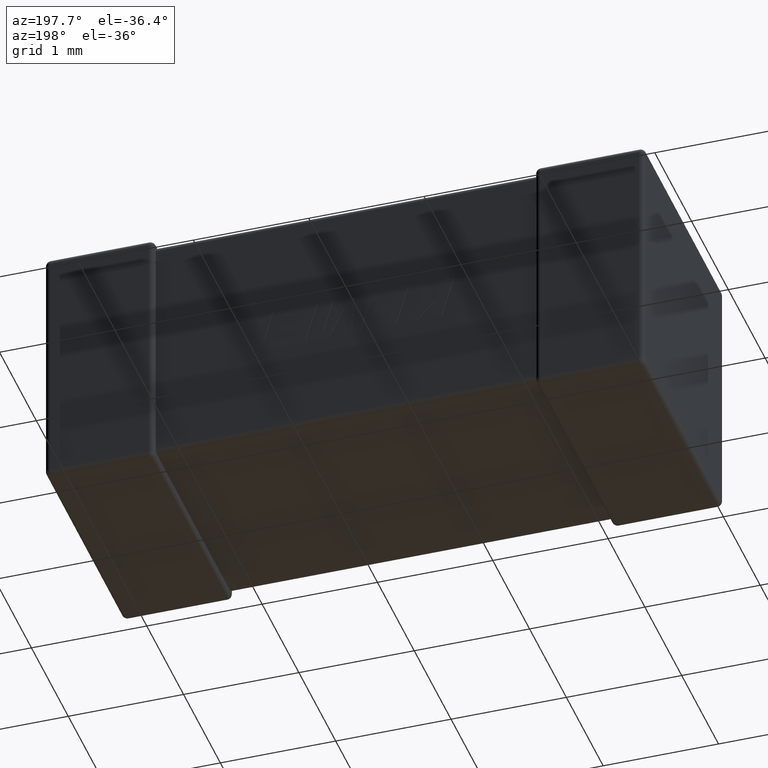
[diagram: clean part render]
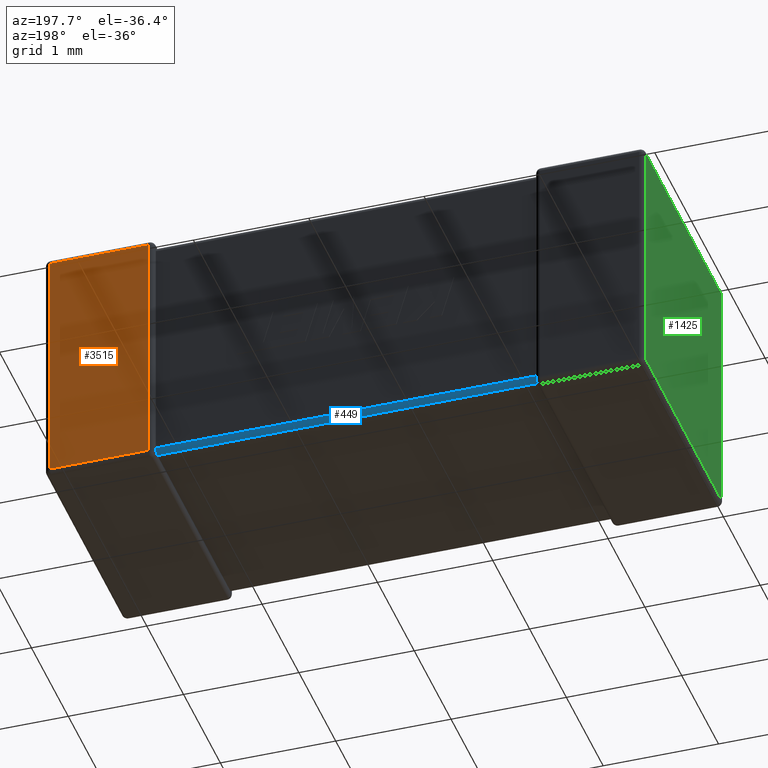
[diagram: same view with three faces highlighted in distinct colors, each labeled with its STEP entity id]
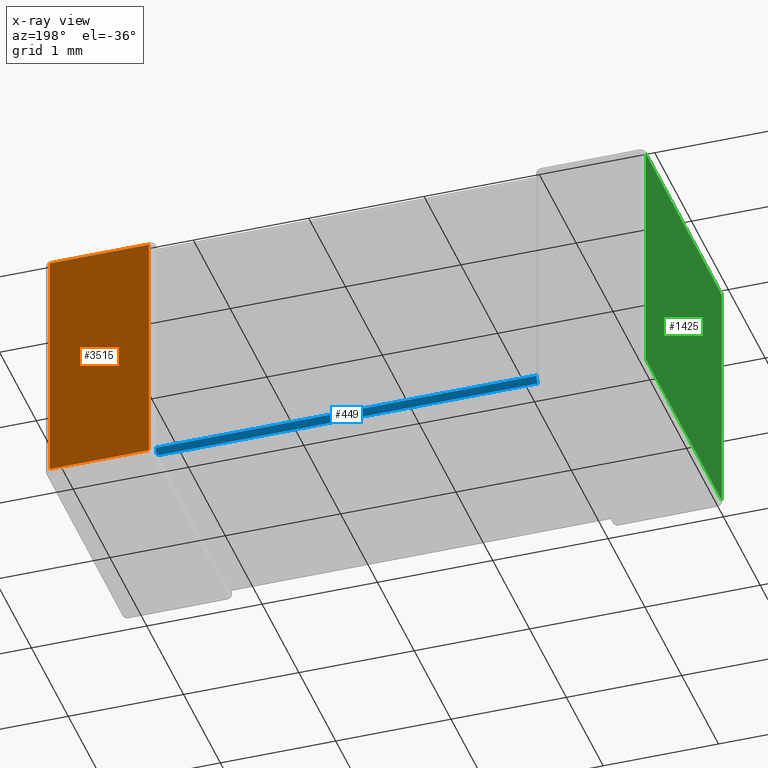
[diagram: x-ray of the same camera — body ghosted, the three highlighted faces saturated]
A machine part, auxiliary view with three faces highlighted in distinct colors.
The next image is the same camera in x-ray (body ghosted, the three faces saturated) — at least one of them is partly hidden behind the body in this view.
Their STEP definitions:

[orange] entity #3515 — the highlighted planar face has unit normal (0, -1, 0).
#100 = VECTOR ( 'NONE', #2564, 1000.000000000000000 ) ;
#117 = ORIENTED_EDGE ( 'NONE', *, *, #4669, .T. ) ;
#129 = LINE ( 'NONE', #1514, #2076 ) ;
#134 = VERTEX_POINT ( 'NONE', #1298 ) ;
#205 = CARTESIAN_POINT ( 'NONE',  ( 5.200000000000000200, 2.149999999999999900, 0.0000000000000000000 ) ) ;
#526 = FACE_OUTER_BOUND ( 'NONE', #4614, .T. ) ;
#687 = CARTESIAN_POINT ( 'NONE',  ( 5.200000000000000200, 2.149999999999999900, -2.154240000000000200 ) ) ;
#763 = VERTEX_POINT ( 'NONE', #1890 ) ;
#1122 = CARTESIAN_POINT ( 'NONE',  ( 5.154239999999999700, 2.149999999999999900, -0.04576000000000000200 ) ) ;
#1262 = AXIS2_PLACEMENT_3D ( 'NONE', #205, #1958, #1977 ) ;
#1298 = CARTESIAN_POINT ( 'NONE',  ( 4.295759999999999600, 2.149999999999999900, -2.154240000000000200 ) ) ;
#1361 = VECTOR ( 'NONE', #3210, 1000.000000000000000 ) ;
#1362 = ORIENTED_EDGE ( 'NONE', *, *, #3627, .T. ) ;
#1483 = ORIENTED_EDGE ( 'NONE', *, *, #2254, .T. ) ;
#1514 = CARTESIAN_POINT ( 'NONE',  ( 4.295759999999999600, 2.149999999999999900, 0.0000000000000000000 ) ) ;
#1536 = LINE ( 'NONE', #4603, #1361 ) ;
#1555 = EDGE_CURVE ( 'NONE', #1922, #763, #4226, .T. ) ;
#1862 = DIRECTION ( 'NONE',  ( -0.0000000000000000000, 0.0000000000000000000, 1.000000000000000000 ) ) ;
#1866 = VERTEX_POINT ( 'NONE', #3213 ) ;
#1890 = CARTESIAN_POINT ( 'NONE',  ( 5.154239999999999700, 2.149999999999999900, -2.154240000000000200 ) ) ;
#1922 = VERTEX_POINT ( 'NONE', #1122 ) ;
#1958 = DIRECTION ( 'NONE',  ( 0.0000000000000000000, -1.000000000000000000, 0.0000000000000000000 ) ) ;
#1977 = DIRECTION ( 'NONE',  ( 0.0000000000000000000, -0.0000000000000000000, -1.000000000000000000 ) ) ;
#1986 = LINE ( 'NONE', #687, #100 ) ;
#2076 = VECTOR ( 'NONE', #1862, 1000.000000000000000 ) ;
#2202 = DIRECTION ( 'NONE',  ( -0.0000000000000000000, -0.0000000000000000000, -1.000000000000000000 ) ) ;
#2254 = EDGE_CURVE ( 'NONE', #763, #134, #1986, .T. ) ;
#2332 = PLANE ( 'NONE',  #1262 ) ;
#2564 = DIRECTION ( 'NONE',  ( -1.000000000000000000, 0.0000000000000000000, 0.0000000000000000000 ) ) ;
#2916 = CARTESIAN_POINT ( 'NONE',  ( 5.154239999999999700, 2.149999999999999900, 0.0000000000000000000 ) ) ;
#3210 = DIRECTION ( 'NONE',  ( 1.000000000000000000, -0.0000000000000000000, -0.0000000000000000000 ) ) ;
#3213 = CARTESIAN_POINT ( 'NONE',  ( 4.295759999999999600, 2.149999999999999900, -0.04576000000000000200 ) ) ;
#3405 = ORIENTED_EDGE ( 'NONE', *, *, #1555, .T. ) ;
#3515 = ADVANCED_FACE ( 'NONE', ( #526 ), #2332, .F. ) ;
#3627 = EDGE_CURVE ( 'NONE', #134, #1866, #129, .T. ) ;
#4120 = VECTOR ( 'NONE', #2202, 1000.000000000000000 ) ;
#4226 = LINE ( 'NONE', #2916, #4120 ) ;
#4603 = CARTESIAN_POINT ( 'NONE',  ( 5.200000000000000200, 2.149999999999999900, -0.04576000000000000200 ) ) ;
#4614 = EDGE_LOOP ( 'NONE', ( #117, #3405, #1483, #1362 ) ) ;
#4669 = EDGE_CURVE ( 'NONE', #1866, #1922, #1536, .T. ) ;

[blue] entity #449 — the highlighted cylindrical surface (edge-blend (fillet) strip) has radius 0.0458 mm, axis along (1, 0, 0).
#96 = CARTESIAN_POINT ( 'NONE',  ( 4.249999999999999100, 2.058479999999999400, -2.154240000000000200 ) ) ;
#178 = CARTESIAN_POINT ( 'NONE',  ( 0.9498373466147110900, 2.100039106626058000, -2.128294917049787100 ) ) ;
#258 = CARTESIAN_POINT ( 'NONE',  ( 4.249998868445320700, 2.104051922929197600, -2.113263305316638100 ) ) ;
#343 = CARTESIAN_POINT ( 'NONE',  ( 0.9499965636499262400, 2.065622045644347300, -2.153679212205679100 ) ) ;
#420 = CARTESIAN_POINT ( 'NONE',  ( 0.9499999999999995100, 2.058479999999999400, -2.108479999999999700 ) ) ;
#436 = CARTESIAN_POINT ( 'NONE',  ( 4.250384154442141200, 2.082883648150979400, -2.147515733511034400 ) ) ;
#443 = DIRECTION ( 'NONE',  ( 0.0000000000000000000, 0.0000000000000000000, -1.000000000000000000 ) ) ;
#449 = ADVANCED_FACE ( 'NONE', ( #2972 ), #4311, .T. ) ;
#452 = VERTEX_POINT ( 'NONE', #1857 ) ;
#472 = CARTESIAN_POINT ( 'NONE',  ( 0.9496158455578572700, 2.097515733511033700, -2.132883648150979600 ) ) ;
#492 = CARTESIAN_POINT ( 'NONE',  ( 0.9499999999999995100, 2.058479999999999400, -2.154240000000000200 ) ) ;
#568 = CARTESIAN_POINT ( 'NONE',  ( 4.250012588762500000, 2.102932436070394500, -2.120348099591588700 ) ) ;
#658 = CARTESIAN_POINT ( 'NONE',  ( 0.9494871695675238800, 2.083542699005999800, -2.147065384896639900 ) ) ;
#799 = ORIENTED_EDGE ( 'NONE', *, *, #1741, .F. ) ;
#813 = CARTESIAN_POINT ( 'NONE',  ( 4.251623174319922400, 2.089584874375030900, -2.142089538239374300 ) ) ;
#844 = CARTESIAN_POINT ( 'NONE',  ( 4.249999999999999100, 2.058479999999999400, -2.154240000000000200 ) ) ;
#847 = B_SPLINE_CURVE_WITH_KNOTS ( 'NONE', 3,
 ( #941, #2323, #4434, #2964, #178, #472, #2229, #2991, #3061, #2588 ),
 .UNSPECIFIED., .F., .F.,
 ( 4, 3, 3, 4 ),
 ( 0.0000000000000000000, 1.522804917170491500E-005, 3.048754539651961800E-005, 3.585390750034330200E-005 ),
 .UNSPECIFIED. ) ;
#848 = EDGE_CURVE ( 'NONE', #3409, #1300, #2852, .T. ) ;
#904 = EDGE_CURVE ( 'NONE', #1433, #3409, #2596, .T. ) ;
#941 = CARTESIAN_POINT ( 'NONE',  ( 0.9499999999999998400, 2.104239999999999400, -2.108479999999999700 ) ) ;
#980 = CARTESIAN_POINT ( 'NONE',  ( 4.250003436350072900, 2.103679212205678400, -2.115622045644348400 ) ) ;
#999 = DIRECTION ( 'NONE',  ( 1.000000000000000000, 0.0000000000000000000, 0.0000000000000000000 ) ) ;
#1040 = CARTESIAN_POINT ( 'NONE',  ( 0.9499999999999998400, 2.104239999999999400, -2.108479999999999700 ) ) ;
#1060 = CARTESIAN_POINT ( 'NONE',  ( 0.9479932024110857600, 2.090837206307095900, -2.140837206307096200 ) ) ;
#1089 = ORIENTED_EDGE ( 'NONE', *, *, #848, .F. ) ;
#1188 = CARTESIAN_POINT ( 'NONE',  ( 4.249999999999999100, 2.063556016390564600, -2.154240000000000200 ) ) ;
#1209 = ORIENTED_EDGE ( 'NONE', *, *, #2623, .F. ) ;
#1278 = VECTOR ( 'NONE', #2046, 1000.000000000000000 ) ;
#1300 = VERTEX_POINT ( 'NONE', #2487 ) ;
#1433 = VERTEX_POINT ( 'NONE', #1810 ) ;
#1635 = B_SPLINE_CURVE_WITH_KNOTS ( 'NONE', 3,
 ( #1060, #1757, #658, #2478, #2109, #4654, #343, #3183, #3196, #2434 ),
 .UNSPECIFIED., .F., .F.,
 ( 4, 3, 3, 4 ),
 ( 0.0000000000000000000, 1.440327130873426000E-005, 2.873057376553069700E-005, 3.581349862793723000E-005 ),
 .UNSPECIFIED. ) ;
#1741 = EDGE_CURVE ( 'NONE', #2467, #2897, #847, .T. ) ;
#1757 = CARTESIAN_POINT ( 'NONE',  ( 0.9490095774929439000, 2.087519266353602200, -2.144155146260589500 ) ) ;
#1807 = ORIENTED_EDGE ( 'NONE', *, *, #2709, .F. ) ;
#1810 = CARTESIAN_POINT ( 'NONE',  ( 0.9499999999999995100, 2.058479999999999400, -2.154240000000000200 ) ) ;
#1857 = CARTESIAN_POINT ( 'NONE',  ( 4.249999999999999100, 2.104239999999999400, -2.108479999999999700 ) ) ;
#1879 = CARTESIAN_POINT ( 'NONE',  ( 4.252006797588913800, 2.090837206307095900, -2.140837206307096200 ) ) ;
#1901 = CARTESIAN_POINT ( 'NONE',  ( 4.250162653385287600, 2.078294917049786400, -2.150039106626058700 ) ) ;
#2046 = DIRECTION ( 'NONE',  ( -1.000000000000000000, -0.0000000000000000000, -0.0000000000000000000 ) ) ;
#2109 = CARTESIAN_POINT ( 'NONE',  ( 0.9499649350478749400, 2.075014071729166500, -2.151415283233708600 ) ) ;
#2132 = ORIENTED_EDGE ( 'NONE', *, *, #904, .F. ) ;
#2168 = B_SPLINE_CURVE_WITH_KNOTS ( 'NONE', 3,
 ( #2398, #2386, #3105, #3490, #3126, #568, #980, #258, #3156, #2729 ),
 .UNSPECIFIED., .F., .F.,
 ( 4, 3, 3, 4 ),
 ( 0.0000000000000000000, 1.440327130873363300E-005, 2.873057376552966000E-005, 3.581349862793662700E-005 ),
 .UNSPECIFIED. ) ;
#2210 = CARTESIAN_POINT ( 'NONE',  ( 4.249977847819920400, 2.068701452582215200, -2.153371613029391200 ) ) ;
#2229 = CARTESIAN_POINT ( 'NONE',  ( 0.9489286084430776900, 2.094395921809469200, -2.136835319793224400 ) ) ;
#2272 = CARTESIAN_POINT ( 'NONE',  ( 0.9499999999999998400, 2.104239999999999400, -2.108479999999999700 ) ) ;
#2323 = CARTESIAN_POINT ( 'NONE',  ( 0.9499999999999998400, 2.104239999999999400, -2.113556016390564900 ) ) ;
#2346 = EDGE_CURVE ( 'NONE', #452, #2467, #4156, .T. ) ;
#2386 = CARTESIAN_POINT ( 'NONE',  ( 4.250990422507054900, 2.094155146260589600, -2.137519266353602500 ) ) ;
#2398 = CARTESIAN_POINT ( 'NONE',  ( 4.252006797588913800, 2.090837206307095900, -2.140837206307096200 ) ) ;
#2434 = CARTESIAN_POINT ( 'NONE',  ( 0.9499999999999995100, 2.058479999999999400, -2.154240000000000200 ) ) ;
#2467 = VERTEX_POINT ( 'NONE', #2272 ) ;
#2478 = CARTESIAN_POINT ( 'NONE',  ( 0.9497264607912542200, 2.079271093497134800, -2.149244053174253400 ) ) ;
#2487 = CARTESIAN_POINT ( 'NONE',  ( 4.252006797588913800, 2.090837206307095900, -2.140837206307096200 ) ) ;
#2536 = VECTOR ( 'NONE', #999, 1000.000000000000000 ) ;
#2582 = CARTESIAN_POINT ( 'NONE',  ( 4.250070201088285600, 2.073495614472127300, -2.151706252694681100 ) ) ;
#2588 = CARTESIAN_POINT ( 'NONE',  ( 0.9479932024110857600, 2.090837206307095900, -2.140837206307096200 ) ) ;
#2596 = LINE ( 'NONE', #492, #2536 ) ;
#2623 = EDGE_CURVE ( 'NONE', #1300, #452, #2168, .T. ) ;
#2709 = EDGE_CURVE ( 'NONE', #2897, #1433, #1635, .T. ) ;
#2729 = CARTESIAN_POINT ( 'NONE',  ( 4.249999999999999100, 2.104239999999999400, -2.108479999999999700 ) ) ;
#2852 = B_SPLINE_CURVE_WITH_KNOTS ( 'NONE', 3,
 ( #844, #1188, #2210, #2582, #1901, #436, #3716, #2958, #813, #1879 ),
 .UNSPECIFIED., .F., .F.,
 ( 4, 3, 3, 4 ),
 ( 0.0000000000000000000, 1.522804917170488900E-005, 3.048754539651953700E-005, 3.585390750034391900E-005 ),
 .UNSPECIFIED. ) ;
#2897 = VERTEX_POINT ( 'NONE', #3786 ) ;
#2936 = DIRECTION ( 'NONE',  ( 1.000000000000000000, 0.0000000000000000000, 0.0000000000000000000 ) ) ;
#2958 = CARTESIAN_POINT ( 'NONE',  ( 4.251316472178415600, 2.088244554133452400, -2.143283343087621700 ) ) ;
#2964 = CARTESIAN_POINT ( 'NONE',  ( 0.9499297989117130300, 2.101706252694680400, -2.123495614472127500 ) ) ;
#2972 = FACE_OUTER_BOUND ( 'NONE', #4259, .T. ) ;
#2991 = CARTESIAN_POINT ( 'NONE',  ( 0.9486835278215822700, 2.093283343087621400, -2.138244554133453200 ) ) ;
#3061 = CARTESIAN_POINT ( 'NONE',  ( 0.9483768256800764200, 2.092089538239374000, -2.139584874375031200 ) ) ;
#3105 = CARTESIAN_POINT ( 'NONE',  ( 4.250512830432475300, 2.097065384896639600, -2.133542699006000000 ) ) ;
#3126 = CARTESIAN_POINT ( 'NONE',  ( 4.250035064952124100, 2.101415283233707900, -2.125014071729167200 ) ) ;
#3156 = CARTESIAN_POINT ( 'NONE',  ( 4.249999999999926300, 2.104240000000003400, -2.110868009648797300 ) ) ;
#3183 = CARTESIAN_POINT ( 'NONE',  ( 0.9500011315546789100, 2.063263305316637400, -2.154051922929197900 ) ) ;
#3196 = CARTESIAN_POINT ( 'NONE',  ( 0.9500000000000731200, 2.060868009648796600, -2.154240000000003700 ) ) ;
#3409 = VERTEX_POINT ( 'NONE', #96 ) ;
#3490 = CARTESIAN_POINT ( 'NONE',  ( 4.250273539208745200, 2.099244053174252700, -2.129271093497135100 ) ) ;
#3716 = CARTESIAN_POINT ( 'NONE',  ( 4.251071391556920700, 2.086835319793224100, -2.144395921809469900 ) ) ;
#3762 = ORIENTED_EDGE ( 'NONE', *, *, #2346, .F. ) ;
#3786 = CARTESIAN_POINT ( 'NONE',  ( 0.9479932024110857600, 2.090837206307095900, -2.140837206307096200 ) ) ;
#4156 = LINE ( 'NONE', #1040, #1278 ) ;
#4259 = EDGE_LOOP ( 'NONE', ( #799, #3762, #1209, #1089, #2132, #1807 ) ) ;
#4263 = AXIS2_PLACEMENT_3D ( 'NONE', #420, #2936, #443 ) ;
#4311 = CYLINDRICAL_SURFACE ( 'NONE', #4263, 0.04576000000000016200 ) ;
#4434 = CARTESIAN_POINT ( 'NONE',  ( 0.9500221521800784600, 2.103371613029390500, -2.118701452582215900 ) ) ;
#4654 = CARTESIAN_POINT ( 'NONE',  ( 0.9499874112374994100, 2.070348099591587500, -2.152932436070395200 ) ) ;

[green] entity #1425 — the highlighted planar face has unit normal (-1, 0, 0).
#46 = VECTOR ( 'NONE', #1796, 1000.000000000000000 ) ;
#55 = EDGE_CURVE ( 'NONE', #412, #2938, #3897, .T. ) ;
#331 = VECTOR ( 'NONE', #3759, 1000.000000000000000 ) ;
#333 = CARTESIAN_POINT ( 'NONE',  ( 0.0000000000000000000, 0.04576000000000000200, 0.0000000000000000000 ) ) ;
#412 = VERTEX_POINT ( 'NONE', #4319 ) ;
#660 = LINE ( 'NONE', #1081, #46 ) ;
#991 = CARTESIAN_POINT ( 'NONE',  ( 0.0000000000000000000, 2.104239999999999900, -0.04576000000000000200 ) ) ;
#1081 = CARTESIAN_POINT ( 'NONE',  ( 0.0000000000000000000, 2.149999999999999900, -0.04576000000000000200 ) ) ;
#1096 = PLANE ( 'NONE',  #1223 ) ;
#1223 = AXIS2_PLACEMENT_3D ( 'NONE', #1503, #2863, #3608 ) ;
#1381 = VECTOR ( 'NONE', #4503, 1000.000000000000000 ) ;
#1425 = ADVANCED_FACE ( 'NONE', ( #2741 ), #1096, .T. ) ;
#1503 = CARTESIAN_POINT ( 'NONE',  ( 0.0000000000000000000, 0.0000000000000000000, 0.0000000000000000000 ) ) ;
#1597 = EDGE_LOOP ( 'NONE', ( #2238, #1808, #2173, #3713 ) ) ;
#1674 = CARTESIAN_POINT ( 'NONE',  ( 0.0000000000000000000, 0.04576000000000000200, -0.04576000000000000200 ) ) ;
#1796 = DIRECTION ( 'NONE',  ( -0.0000000000000000000, 1.000000000000000000, -0.0000000000000000000 ) ) ;
#1808 = ORIENTED_EDGE ( 'NONE', *, *, #2979, .T. ) ;
#1871 = VERTEX_POINT ( 'NONE', #1674 ) ;
#1971 = CARTESIAN_POINT ( 'NONE',  ( 0.0000000000000000000, 2.104239999999999900, -2.200000000000000200 ) ) ;
#2173 = ORIENTED_EDGE ( 'NONE', *, *, #2444, .T. ) ;
#2238 = ORIENTED_EDGE ( 'NONE', *, *, #55, .T. ) ;
#2257 = LINE ( 'NONE', #333, #3761 ) ;
#2423 = CARTESIAN_POINT ( 'NONE',  ( 0.0000000000000000000, 0.04576000000000000200, -2.154240000000000200 ) ) ;
#2444 = EDGE_CURVE ( 'NONE', #1871, #3914, #660, .T. ) ;
#2741 = FACE_OUTER_BOUND ( 'NONE', #1597, .T. ) ;
#2838 = LINE ( 'NONE', #1971, #1381 ) ;
#2863 = DIRECTION ( 'NONE',  ( -1.000000000000000000, 0.0000000000000000000, 0.0000000000000000000 ) ) ;
#2938 = VERTEX_POINT ( 'NONE', #2423 ) ;
#2979 = EDGE_CURVE ( 'NONE', #2938, #1871, #2257, .T. ) ;
#3306 = EDGE_CURVE ( 'NONE', #3914, #412, #2838, .T. ) ;
#3406 = CARTESIAN_POINT ( 'NONE',  ( 0.0000000000000000000, 0.0000000000000000000, -2.154240000000000200 ) ) ;
#3608 = DIRECTION ( 'NONE',  ( 0.0000000000000000000, 0.0000000000000000000, 1.000000000000000000 ) ) ;
#3713 = ORIENTED_EDGE ( 'NONE', *, *, #3306, .T. ) ;
#3759 = DIRECTION ( 'NONE',  ( -0.0000000000000000000, -1.000000000000000000, -0.0000000000000000000 ) ) ;
#3761 = VECTOR ( 'NONE', #4314, 1000.000000000000000 ) ;
#3897 = LINE ( 'NONE', #3406, #331 ) ;
#3914 = VERTEX_POINT ( 'NONE', #991 ) ;
#4314 = DIRECTION ( 'NONE',  ( -0.0000000000000000000, -0.0000000000000000000, 1.000000000000000000 ) ) ;
#4319 = CARTESIAN_POINT ( 'NONE',  ( 0.0000000000000000000, 2.104239999999999900, -2.154240000000000200 ) ) ;
#4503 = DIRECTION ( 'NONE',  ( -0.0000000000000000000, 0.0000000000000000000, -1.000000000000000000 ) ) ;